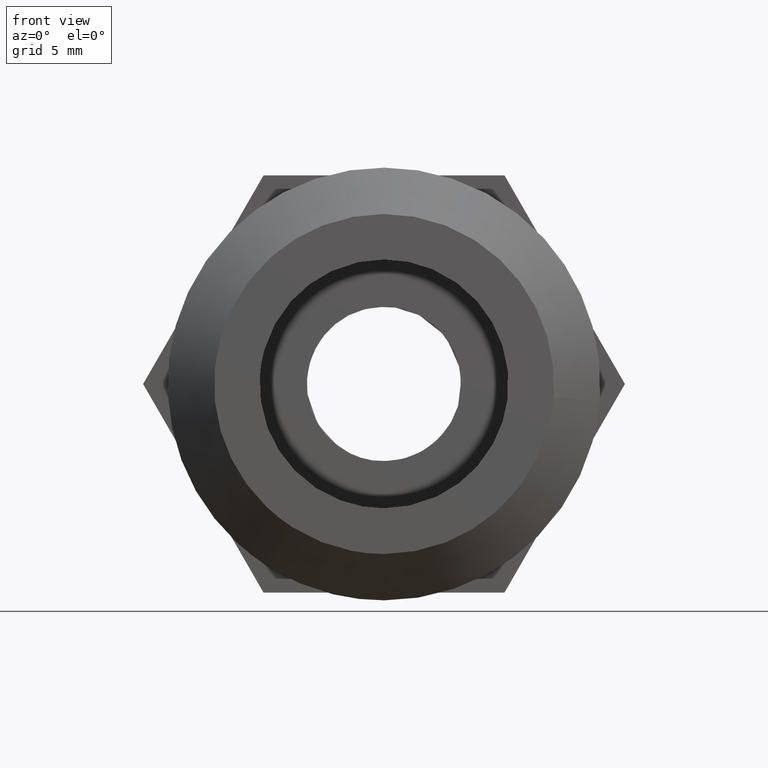
[diagram: clean part render]
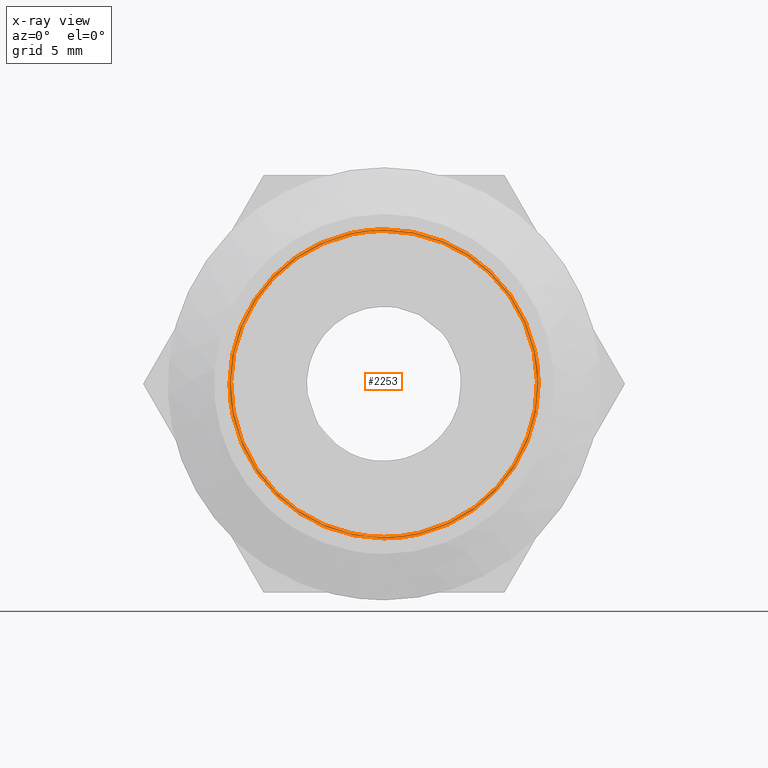
[diagram: x-ray — body ghosted, one internal face saturated and labeled with its STEP entity id]
A machine part, front view, then the same camera in x-ray: the body is ghosted and one INTERNAL B-rep face — a face not visible from any outside direction — is saturated and labeled: STEP entity #2253.
In plain terms, the highlighted face is a freeform B-spline surface patch.
Its self-contained STEP definition (entity closure, byte-faithful):
#702=CARTESIAN_POINT('',(13.000000617465760,-9.764228942748130,-1.633965257896113));
#703=VERTEX_POINT('',#702);
#709=CARTESIAN_POINT('',(13.000000617465760,0.0,-9.900000470224750));
#710=VERTEX_POINT('',#709);
#711=CARTESIAN_POINT('',(13.000000617465762,-9.764228942748130,-1.633965257896114));
#712=CARTESIAN_POINT('',(13.000000617465759,-8.380974367638764,-9.900000470224750));
#713=CARTESIAN_POINT('',(13.000000617465760,0.0,-9.900000470224750));
#721=(BOUNDED_CURVE()B_SPLINE_CURVE(2,(#711,#712,#713),.UNSPECIFIED.,.F.,.U.)B_SPLINE_CURVE_WITH_KNOTS((3,3),(0.778400414016040,1.0),.UNSPECIFIED.)CURVE()GEOMETRIC_REPRESENTATION_ITEM()RATIONAL_B_SPLINE_CURVE((0.941013461540086,0.740379935893718,1.0))REPRESENTATION_ITEM(''));
#722=EDGE_CURVE('',#703,#710,#721,.T.);
#724=CARTESIAN_POINT('',(13.000000617465760,2.189730196384369,-9.654796268045406));
#725=VERTEX_POINT('',#724);
#726=CARTESIAN_POINT('',(13.000000617465760,0.0,-9.900000470224750));
#727=CARTESIAN_POINT('',(13.000000617465759,1.108593981518926,-9.900000470224752));
#728=CARTESIAN_POINT('',(13.000000617465755,2.189730196384369,-9.654796268045406));
#736=(BOUNDED_CURVE()B_SPLINE_CURVE(2,(#726,#727,#728),.UNSPECIFIED.,.F.,.U.)B_SPLINE_CURVE_WITH_KNOTS((3,3),(0.0,0.037835676994473),.UNSPECIFIED.)CURVE()GEOMETRIC_REPRESENTATION_ITEM()RATIONAL_B_SPLINE_CURVE((1.0,0.955672747116411,0.924762707210068))REPRESENTATION_ITEM(''));
#737=EDGE_CURVE('',#710,#725,#736,.T.);
#785=CARTESIAN_POINT('',(13.000000617465760,0.0,9.900000470224750));
#786=VERTEX_POINT('',#785);
#787=CARTESIAN_POINT('',(13.000000617465755,2.189730196384369,-9.654796268045406));
#788=CARTESIAN_POINT('',(13.000000617465757,9.900000470224750,-7.906089079186573));
#789=CARTESIAN_POINT('',(13.000000617465760,9.900000470224750,0.0));
#790=CARTESIAN_POINT('',(13.000000617465759,9.900000470224750,9.900000470224750));
#791=CARTESIAN_POINT('',(13.000000617465760,0.0,9.900000470224750));
#799=(BOUNDED_CURVE()B_SPLINE_CURVE(2,(#787,#788,#789,#790,#791),.UNSPECIFIED.,.F.,.U.)B_SPLINE_CURVE_WITH_KNOTS((3,2,3),(0.037835676994473,0.250000000000000,0.500000000000000),.UNSPECIFIED.)CURVE()GEOMETRIC_REPRESENTATION_ITEM()RATIONAL_B_SPLINE_CURVE((0.924762707210068,0.751434034070137,1.0,0.707106781186548,1.0))REPRESENTATION_ITEM(''));
#800=EDGE_CURVE('',#725,#786,#799,.T.);
#802=CARTESIAN_POINT('',(13.000000617465760,0.0,9.900000470224750));
#803=CARTESIAN_POINT('',(13.000000617465759,-9.900000470224750,9.900000470224750));
#804=CARTESIAN_POINT('',(13.000000617465760,-9.900000470224750,0.0));
#805=CARTESIAN_POINT('',(13.000000617465764,-9.900000470224750,-0.822623479506002));
#806=CARTESIAN_POINT('',(13.000000617465762,-9.764228942748130,-1.633965257896114));
#814=(BOUNDED_CURVE()B_SPLINE_CURVE(2,(#802,#803,#804,#805,#806),.UNSPECIFIED.,.F.,.U.)B_SPLINE_CURVE_WITH_KNOTS((3,2,3),(0.500000000000000,0.750000000000000,0.778400414016040),.UNSPECIFIED.)CURVE()GEOMETRIC_REPRESENTATION_ITEM()RATIONAL_B_SPLINE_CURVE((1.0,0.707106781186548,1.0,0.966726845292829,0.941013461540086))REPRESENTATION_ITEM(''));
#815=EDGE_CURVE('',#786,#703,#814,.T.);
#1451=CARTESIAN_POINT('',(13.000000617465760,-1.075529E-013,10.000000474974540));
#1452=VERTEX_POINT('',#1451);
#1479=CARTESIAN_POINT('',(13.000000617465760,-10.000000474974501,9.974660E-014));
#1480=VERTEX_POINT('',#1479);
#1496=CARTESIAN_POINT('',(13.000000617465760,-1.075529E-013,10.000000474974540));
#1497=CARTESIAN_POINT('',(13.000000617465700,-10.000000522471961,10.000000522472059));
#1498=CARTESIAN_POINT('',(13.000000617465760,-10.000000474974501,9.974660E-014));
#1506=(BOUNDED_CURVE()B_SPLINE_CURVE(2,(#1496,#1497,#1498),.UNSPECIFIED.,.F.,.U.)CURVE()GEOMETRIC_REPRESENTATION_ITEM()QUASI_UNIFORM_CURVE()RATIONAL_B_SPLINE_CURVE((1.0,0.707106781186548,1.0))REPRESENTATION_ITEM(''));
#1507=EDGE_CURVE('',#1452,#1480,#1506,.T.);
#1528=CARTESIAN_POINT('',(13.000000617465760,10.000000474974501,0.0));
#1529=VERTEX_POINT('',#1528);
#1571=CARTESIAN_POINT('',(13.000000617465760,10.000000474974501,0.0));
#1572=CARTESIAN_POINT('',(13.000000617465703,10.000000522472021,4.142135840145979));
#1573=CARTESIAN_POINT('',(13.000000617465700,7.071068181308947,7.071068181309022));
#1574=CARTESIAN_POINT('',(13.000000617465703,4.142135840145917,10.000000522472021));
#1575=CARTESIAN_POINT('',(13.000000617465760,-1.075529E-013,10.000000474974540));
#1583=(BOUNDED_CURVE()B_SPLINE_CURVE(2,(#1571,#1572,#1573,#1574,#1575),.UNSPECIFIED.,.F.,.U.)B_SPLINE_CURVE_WITH_KNOTS((3,2,3),(0.0,0.500000000000000,1.0),.UNSPECIFIED.)CURVE()GEOMETRIC_REPRESENTATION_ITEM()RATIONAL_B_SPLINE_CURVE((1.0,0.923879532511286,1.0,0.923879532511286,1.0))REPRESENTATION_ITEM(''));
#1584=EDGE_CURVE('',#1529,#1452,#1583,.T.);
#1605=CARTESIAN_POINT('',(13.000000617465760,8.500145E-014,-10.000000474974399));
#1606=VERTEX_POINT('',#1605);
#1648=CARTESIAN_POINT('',(13.000000617465760,8.500145E-014,-10.000000474974399));
#1649=CARTESIAN_POINT('',(13.000000617465700,10.000000522472007,-10.000000522471920));
#1650=CARTESIAN_POINT('',(13.000000617465760,10.000000474974501,0.0));
#1658=(BOUNDED_CURVE()B_SPLINE_CURVE(2,(#1648,#1649,#1650),.UNSPECIFIED.,.F.,.U.)CURVE()GEOMETRIC_REPRESENTATION_ITEM()QUASI_UNIFORM_CURVE()RATIONAL_B_SPLINE_CURVE((1.0,0.707106781186548,1.0))REPRESENTATION_ITEM(''));
#1659=EDGE_CURVE('',#1606,#1529,#1658,.T.);
#1721=CARTESIAN_POINT('',(13.000000617465760,-10.000000474974501,9.974660E-014));
#1722=CARTESIAN_POINT('',(13.000000617465698,-10.000000522472021,-4.142135840145920));
#1723=CARTESIAN_POINT('',(13.000000617465700,-7.071068181309017,-7.071068181308951));
#1724=CARTESIAN_POINT('',(13.000000617465698,-4.142135840145975,-10.000000522472021));
#1725=CARTESIAN_POINT('',(13.000000617465760,8.500145E-014,-10.000000474974399));
#1733=(BOUNDED_CURVE()B_SPLINE_CURVE(2,(#1721,#1722,#1723,#1724,#1725),.UNSPECIFIED.,.F.,.U.)B_SPLINE_CURVE_WITH_KNOTS((3,2,3),(0.0,0.500000000000000,1.0),.UNSPECIFIED.)CURVE()GEOMETRIC_REPRESENTATION_ITEM()RATIONAL_B_SPLINE_CURVE((1.0,0.923879532511288,1.0,0.923879532511288,1.0))REPRESENTATION_ITEM(''));
#1734=EDGE_CURVE('',#1480,#1606,#1733,.T.);
#2236=CARTESIAN_POINT('',(13.000000617465700,-10.999000036715120,-10.999000036715019));
#2237=CARTESIAN_POINT('',(13.000000617465700,10.998999500273291,-10.999000036715019));
#2238=CARTESIAN_POINT('',(13.000000617465700,-10.999000036715120,10.998999500273330));
#2239=CARTESIAN_POINT('',(13.000000617465700,10.998999500273291,10.998999500273330));
#2240=B_SPLINE_SURFACE_WITH_KNOTS('',1,1,((#2236,#2238),(#2237,#2239)),.UNSPECIFIED.,.F.,.F.,.U.,(2,2),(2,2),(0.0,21.997999536988409),(0.0,21.997999536988349),.UNSPECIFIED.);
#2241=ORIENTED_EDGE('',*,*,#1507,.T.);
#2242=ORIENTED_EDGE('',*,*,#1734,.T.);
#2243=ORIENTED_EDGE('',*,*,#1659,.T.);
#2244=ORIENTED_EDGE('',*,*,#1584,.T.);
#2245=EDGE_LOOP('',(#2241,#2242,#2243,#2244));
#2246=FACE_OUTER_BOUND('',#2245,.T.);
#2247=ORIENTED_EDGE('',*,*,#815,.F.);
#2248=ORIENTED_EDGE('',*,*,#800,.F.);
#2249=ORIENTED_EDGE('',*,*,#737,.F.);
#2250=ORIENTED_EDGE('',*,*,#722,.F.);
#2251=EDGE_LOOP('',(#2247,#2248,#2249,#2250));
#2252=FACE_BOUND('',#2251,.T.);
#2253=ADVANCED_FACE('',(#2246,#2252),#2240,.T.);